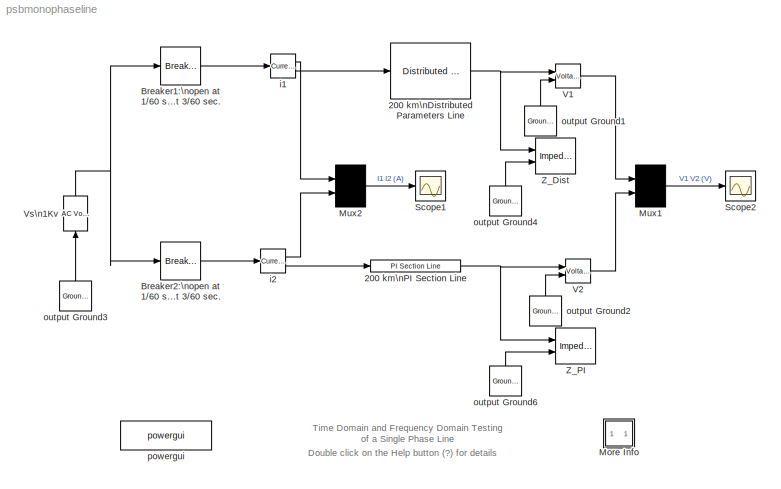
MODEL psbmonophaseline
KIND model
BLOCK [Reference] 200 km\nDistributed Parameters Line  REF=powerlib2/Elements/Distributed Parameters Line
  PSBOutputType = 111111111111111111111111111111
  Ports = [1, 1]
  SourceBlock = powerlib2/Elements/Distributed Parameters Line
  SourceType = Distributed Parameters Line
  Tag = PoWeRsYsTeMbLoCk
  c = 12.37e-9
  f = 60
  l = 2.137e-3
  lgt = 200
  mesure = None
  n = 1
  r = 0.0955
  x1 = [0 0 0 0; 0.0001244 0 0 0; 0.0002488 0 0 0; 0.0003733 0 0 0; 0.0004977 0 0 0; 0.0006221 0 0 0]
  x2 = [0 0 0 0; 0.0001244 0 0 0; 0.0002488 0 0 0; 0.0003733 0 0 0; 0.0004977 0 0 0; 0.0006221 0 0 0]
  x3 = [0 0 0 0; 0.0001244 0 0 0; 0.0002488 0 0 0; 0.0003733 0 0 0; 0.0004977 0 0 0; 0.0006221 0 0 0]
  x4 = [0 0 0 0; 0.0001244 0 0 0; 0.0002488 0 0 0; 0.0003733 0 0 0; 0.0004977 0 0 0; 0.0006221 0 0 0]
  x5 = 0
BLOCK [Reference] 200 km\nPI Section Line  REF=powerlib2/Elements/PI Section Line
  PSBOutputType = 1
  Ports = [1, 1]
  SourceBlock = powerlib2/Elements/PI Section Line
  SourceType = Pi Section Line
  Tag = PoWeRsYsTeMbLoCk
  a = 0.0955
  b = 2.137e-03
  c = 12.37e-09
  d = 200
  e = 2
  f = 60
  mesure = None
BLOCK [Reference] Breaker1:\nopen at 1//60 sec. \nclose at 3//60 sec.  REF=powerlib2/Elements/Breaker
  PSBOutputType = 1
  Ports = [1, 1]
  SourceBlock = powerlib2/Elements/Breaker
  SourceType = Breaker
  Tag = PoWeRsYsTeMbLoCk
  Ts = 0
  a = 0.1
  c = 1
  comext = off
  cs = 0
  mesure = None
  rs = inf
  times = [ 1/60  3/60 ]
BLOCK [Reference] Breaker2:\nopen at 1//60 sec.\nclose at 3//60 sec.  REF=powerlib2/Elements/Breaker
  PSBOutputType = 1
  Ports = [1, 1]
  SourceBlock = powerlib2/Elements/Breaker
  SourceType = Breaker
  Tag = PoWeRsYsTeMbLoCk
  Ts = 0
  a = 0.1
  c = 1
  comext = off
  cs = 0
  mesure = None
  rs = inf
  times = [ 1/60  3/60 ]
BLOCK [SubSystem] More Info
  MaskDisplay = disp('?')
  MaskIconFrame = on
  MaskIconOpaque = on
  MaskIconRotate = none
  MaskIconUnits = autoscale
  MinAlgLoopOccurrences = off
  Ports = []
  RTWSystemCode = Auto
  TreatAsAtomicUnit = off
BLOCK [Mux] Mux1
  Inputs = 2
  Ports = [2, 1]
BLOCK [Mux] Mux2
  Inputs = 2
  Ports = [2, 1]
BLOCK [Scope] Scope1
  DataFormat = Array
  NumInputPorts = 1
  Ports = [1]
  TickLabels = on
  TimeRange = 0.1
  YMax = 4
  YMin = -4
  ZoomMode = yonly
BLOCK [Scope] Scope2
  DataFormat = Array
  NumInputPorts = 1
  Ports = [1]
  TickLabels = on
  TimeRange = 0.1
  YMax = 2500
  YMin = -2500
BLOCK [Reference] V1  REF=powerlib2/Measurements/Voltage Measurement
  OutputType = Magnitude
  PSBOutputType = 0
  PSBequivalent = 0
  PhasorSimulation = off
  Ports = [2, 1]
  SourceBlock = powerlib2/Measurements/Voltage Measurement
  SourceType = Voltage Measurement
  Tag = PoWeRsYsTeMmEaSuReMeNt
BLOCK [Reference] V2  REF=powerlib2/Measurements/Voltage Measurement
  OutputType = Magnitude
  PSBOutputType = 0
  PSBequivalent = 0
  PhasorSimulation = off
  Ports = [2, 1]
  SourceBlock = powerlib2/Measurements/Voltage Measurement
  SourceType = Voltage Measurement
  Tag = PoWeRsYsTeMmEaSuReMeNt
BLOCK [Reference] Vs\n1Kv  REF=powerlib2/Electrical\nSources/AC Voltage Source
  A = 1e3
  F = 60
  P = 0
  PSBOutputType = 1
  Ports = [1, 1]
  SourceBlock = powerlib2/Electrical\nSources/AC Voltage Source
  SourceType = AC Voltage Source
  Tag = PoWeRsYsTeMbLoCk
  mesure = None
  stime = 0
BLOCK [Reference] Z_Dist  REF=powerlib2/Measurements/Impedance Measurement
  Ports = [2]
  SourceBlock = powerlib2/Measurements/Impedance Measurement
  SourceType = Impedance Measurement
  Tag = PoWeRsYsTeMbLoCk
  kz = 1
BLOCK [Reference] Z_PI  REF=powerlib2/Measurements/Impedance Measurement
  Ports = [2]
  SourceBlock = powerlib2/Measurements/Impedance Measurement
  SourceType = Impedance Measurement
  Tag = PoWeRsYsTeMbLoCk
  kz = 1
BLOCK [Reference] i1  REF=powerlib2/Measurements/Current Measurement
  OutputType = Magnitude
  PSBOutputType = 01
  PSBequivalent = 0
  PhasorSimulation = off
  Ports = [1, 2]
  SourceBlock = powerlib2/Measurements/Current Measurement
  SourceType = Current Measurement
  Tag = PoWeRsYsTeMmEaSuReMeNt
BLOCK [Reference] i2  REF=powerlib2/Measurements/Current Measurement
  OutputType = Magnitude
  PSBOutputType = 01
  PSBequivalent = 0
  PhasorSimulation = off
  Ports = [1, 2]
  SourceBlock = powerlib2/Measurements/Current Measurement
  SourceType = Current Measurement
  Tag = PoWeRsYsTeMmEaSuReMeNt
BLOCK [Reference] output Ground1  REF=powerlib2/Connectors/Ground (output)
  PSBOutputType = 1
  Ports = [0, 1]
  SourceBlock = powerlib2/Connectors/Ground (output)
  SourceType = Ground
  Tag = PoWeRsYsTeMbLoCk
BLOCK [Reference] output Ground2  REF=powerlib2/Connectors/Ground (output)
  PSBOutputType = 1
  Ports = [0, 1]
  SourceBlock = powerlib2/Connectors/Ground (output)
  SourceType = Ground
  Tag = PoWeRsYsTeMbLoCk
BLOCK [Reference] output Ground3  REF=powerlib2/Connectors/Ground (output)
  PSBOutputType = 1
  Ports = [0, 1]
  SourceBlock = powerlib2/Connectors/Ground (output)
  SourceType = Ground
  Tag = PoWeRsYsTeMbLoCk
BLOCK [Reference] output Ground4  REF=powerlib2/Connectors/Ground (output)
  PSBOutputType = 1
  Ports = [0, 1]
  SourceBlock = powerlib2/Connectors/Ground (output)
  SourceType = Ground
  Tag = PoWeRsYsTeMbLoCk
BLOCK [Reference] output Ground6  REF=powerlib2/Connectors/Ground (output)
  PSBOutputType = 1
  Ports = [0, 1]
  SourceBlock = powerlib2/Connectors/Ground (output)
  SourceType = Ground
  Tag = PoWeRsYsTeMbLoCk
BLOCK [Reference] powergui  REF=powerlib2/powergui
  DisplayStyle = off
  Frange = 0:2:2000
  FreqAxis = off
  MaxFrequency = 1000
  Ports = []
  RmsSteady = 1
  SourceBlock = powerlib2/powergui
  SourceType = PSB option menu block
  StartTime = 0.0
  Ts = 0
  Xlog = off
  Ylog = on
  ZoomFFT = on
  cycles = 1
  display = on
  echomessages = off
  frequency = 60
  frequencyindice = 1
  frequencyindicesteady = 1
  fundamental = 60
  methode = off
  save = off
  variable = ZData
ANNOTATION (root): Double click on the Help button (?) for details
ANNOTATION (root): Time Domain and Frequency Domain Testing \nof a Single Phase Line
ANNOTATION More Info: 1. Steady-state
ANNOTATION More Info: 2. Time domain comparison
ANNOTATION More Info: 3. Frequency domain comparison
ANNOTATION More Info: A 200 km line is connected on a 1 kV, 60 Hz infinite source. The line is deenergized and then reenergized after 2 cycles. \nThe simulation is performed simultaneously with two different line models: \n\n- Distributed parameter line \n- PI section line consisting of two 100 km sections.\n\nCurrents at the sending end and voltages at the receiving end are compared for the two line models.\nImpedance...<+110ch>
ANNOTATION More Info: Circuit Description
ANNOTATION More Info: Demonstration
ANNOTATION More Info: G. Sybille (Hydro-Quebec)
ANNOTATION More Info: Open the Powergui block and select 'Impedance vs Frequency Measurement'.\nA new window appears, listing the two Impedance Measurement blocks Z_Dist and Z_PI connected to your circuit.\nNote also that parameters are set to compute impedance in the 0:2000 Hz frequency range by steps of 2 Hz.\nUsing the 'CTRL' key, select both Z_Dist and Z_PI in the upper right window.\nThen, click on the Display but...<+570ch>
ANNOTATION More Info: Open the Powergui block and select 'Steady-State Voltages and Currents' to display the voltage and current phasors. \nObserve that the values obtained with the two models are the same.
ANNOTATION More Info: Open the two scopes and start the simulation.\nObserve the difference in current and voltage waveforms at breaker opening and reclosing.\nNote the sharp edges of the distributed parameter model (in yellow) .\nThese voltage and current steps which are due to travelling wave reflections at line ends are filtered by the PI model.
ANNOTATION More Info: This demonstration compares time domain and frequencydomain performance \nof distributed parameter line model and PI section line model
NET 200 km\nDistributed Parameters Line:1 -> V1:1, Z_Dist:1
NET 200 km\nPI Section Line:1 -> V2:1, Z_PI:1
LINE Breaker1:\nopen at 1//60 sec. \nclose at 3//60 sec.:1 -> i1:1
LINE Breaker2:\nopen at 1//60 sec.\nclose at 3//60 sec.:1 -> i2:1
LINE Mux1:1 -> Scope2:1
LINE Mux2:1 -> Scope1:1
LINE V1:1 -> Mux1:1
LINE V2:1 -> Mux1:2
NET Vs\n1Kv:1 -> Breaker1:\nopen at 1//60 sec. \nclose at 3//60 sec.:1, Breaker2:\nopen at 1//60 sec.\nclose at 3//60 sec.:1
LINE i1:1 -> Mux2:1
LINE i1:2 -> 200 km\nDistributed Parameters Line:1
LINE i2:1 -> Mux2:2
LINE i2:2 -> 200 km\nPI Section Line:1
LINE output Ground1:1 -> V1:2
LINE output Ground2:1 -> V2:2
LINE output Ground3:1 -> Vs\n1Kv:1
LINE output Ground4:1 -> Z_Dist:2
LINE output Ground6:1 -> Z_PI:2
note: NET lines group one-source signal fan-out (src -> all destinations, sorted); 1:1 wires keep LINE
